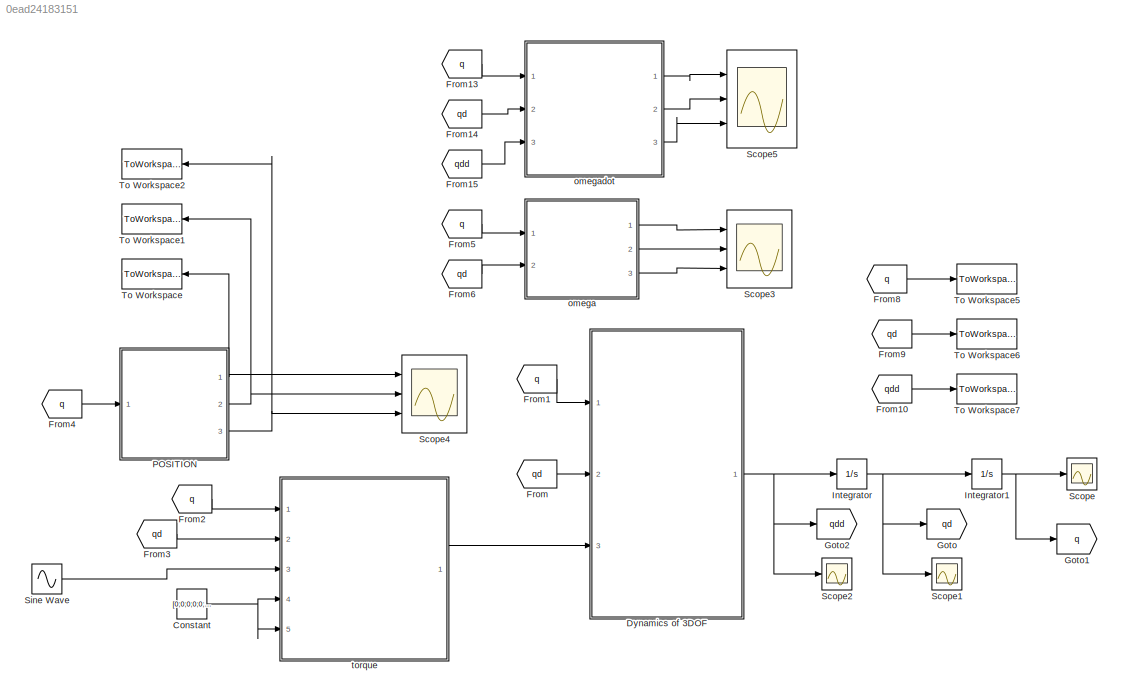
MODEL slx_0ead24183151
KIND model
CONFIG AbsTol = auto
CONFIG EnableMultiTasking = off
CONFIG FixedStep = auto
CONFIG MaxStep = auto
CONFIG MinStep = auto
CONFIG RelTol = 1e-3
CONFIG SampleTimeConstraint = Unconstrained
CONFIG Solver = VariableStepAuto
CONFIG SolverName = VariableStepAuto
CONFIG StartTime = 0.0
CONFIG StopTime = 100
BLOCK [Constant] Constant
  Value = [0;0;0;0;0;0]
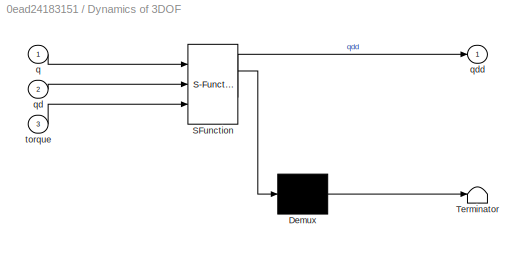
BLOCK [SubSystem] Dynamics of 3DOF
  ErrorFcn = Stateflow.Translate.translate
  PermitHierarchicalResolution = ExplicitOnly
  Ports = [3, 1]
  RequestExecContextInheritance = off
  SFBlockType = MATLAB Function
  TreatAsAtomicUnit = on
  Variant = off
BLOCK [Demux] Dynamics of 3DOF/ Demux 
  Outputs = 1
  Ports = [1, 1]
BLOCK [S-Function] Dynamics of 3DOF/ SFunction 
  EnableBusSupport = on
  FunctionName = sf_sfun
  PortCounts = [3 2]
  Ports = [3, 2]
  SFcnIsStateOwnerBlock = off
  SFunctionDeploymentMode = off
  Tag = Stateflow S-Function Dynamics 2
BLOCK [Terminator] Dynamics of 3DOF/ Terminator 
BLOCK [Inport] Dynamics of 3DOF/q
  IconDisplay = Port number
BLOCK [Inport] Dynamics of 3DOF/qd
  IconDisplay = Port number
  Port = 2
BLOCK [Outport] Dynamics of 3DOF/qdd
  IconDisplay = Port number
BLOCK [Inport] Dynamics of 3DOF/torque
  IconDisplay = Port number
  Port = 3
BLOCK [From] From
  GotoTag = qd
BLOCK [From] From1
  GotoTag = q
BLOCK [From] From10
  GotoTag = qdd
BLOCK [From] From13
  GotoTag = q
BLOCK [From] From14
  GotoTag = qd
BLOCK [From] From15
  GotoTag = qdd
BLOCK [From] From2
  GotoTag = q
BLOCK [From] From3
  GotoTag = qd
BLOCK [From] From4
  GotoTag = q
BLOCK [From] From5
  GotoTag = q
BLOCK [From] From6
  GotoTag = qd
BLOCK [From] From8
  GotoTag = q
BLOCK [From] From9
  GotoTag = qd
BLOCK [Goto] Goto
  GotoTag = qd
BLOCK [Goto] Goto1
  GotoTag = q
BLOCK [Goto] Goto2
  GotoTag = qdd
BLOCK [Integrator] Integrator
  InitialCondition = [0;0;0;0;0;0]
  Ports = [1, 1]
BLOCK [Integrator] Integrator1
  InitialCondition = [1;1;1;1;1;1]
  Ports = [1, 1]
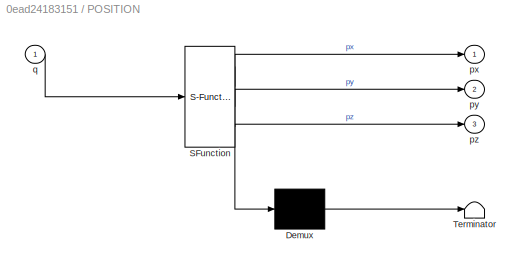
BLOCK [SubSystem] POSITION
  ErrorFcn = Stateflow.Translate.translate
  PermitHierarchicalResolution = ExplicitOnly
  Ports = [1, 3]
  RequestExecContextInheritance = off
  SFBlockType = MATLAB Function
  TreatAsAtomicUnit = on
  Variant = off
BLOCK [Demux] POSITION/ Demux 
  Outputs = 1
  Ports = [1, 1]
BLOCK [S-Function] POSITION/ SFunction 
  EnableBusSupport = on
  FunctionName = sf_sfun
  PortCounts = [1 4]
  Ports = [1, 4]
  SFcnIsStateOwnerBlock = off
  SFunctionDeploymentMode = off
  Tag = Stateflow S-Function Dynamics 4
BLOCK [Terminator] POSITION/ Terminator 
BLOCK [Outport] POSITION/px
  IconDisplay = Port number
BLOCK [Outport] POSITION/py
  IconDisplay = Port number
  Port = 2
BLOCK [Outport] POSITION/pz
  IconDisplay = Port number
  Port = 3
BLOCK [Inport] POSITION/q
  IconDisplay = Port number
BLOCK [Scope] Scope
  NumInputPorts = 1
  Ports = [1]
  ScopeSpecificationString = Simulink.scopes.TimeScopeBlockCfg('CurrentConfiguration', extmgr.ConfigurationSet(extmgr.Configuration('Core','General UI',true,'FigureColor',[0.862745098039216 0.862745098039216 0.862745098039216]),extmgr.Configuration('Core','Source UI',true),extmgr.Configuration('Sources','WiredSimulink',true,'DataLoggingSaveFormat','Array','DataLoggingDecimation','1','DataLoggingDecimateData',true,'DataLogging...<+2134ch>
BLOCK [Scope] Scope1
  NumInputPorts = 1
  Ports = [1]
  ScopeSpecificationString = Simulink.scopes.TimeScopeBlockCfg('CurrentConfiguration', extmgr.ConfigurationSet(extmgr.Configuration('Core','General UI',true,'FigureColor',[0.862745098039216 0.862745098039216 0.862745098039216]),extmgr.Configuration('Core','Source UI',true),extmgr.Configuration('Sources','WiredSimulink',true,'DataLoggingVariableName','ScopeData2','DataLoggingSaveFormat','Array','DataLoggingDecimation','1','Dat...<+2142ch>
BLOCK [Scope] Scope2
  NumInputPorts = 1
  Ports = [1]
  ScopeSpecificationString = Simulink.scopes.TimeScopeBlockCfg('CurrentConfiguration', extmgr.ConfigurationSet(extmgr.Configuration('Core','General UI',true,'FigureColor',[0.862745098039216 0.862745098039216 0.862745098039216]),extmgr.Configuration('Core','Source UI',true),extmgr.Configuration('Sources','WiredSimulink',true,'DataLoggingSaveFormat','Array','DataLoggingDecimation','1','DataLoggingDecimateData',true,'DataLogging...<+2148ch>
BLOCK [Scope] Scope3
  NumInputPorts = 3
  Ports = [3]
  ScopeSpecificationString = Simulink.scopes.TimeScopeBlockCfg('CurrentConfiguration', extmgr.ConfigurationSet(extmgr.Configuration('Core','General UI',true,'FigureColor',[0.862745098039216 0.862745098039216 0.862745098039216]),extmgr.Configuration('Core','Source UI',true),extmgr.Configuration('Sources','WiredSimulink',true,'DataLoggingVariableName','ScopeData4'),extmgr.Configuration('Visuals','Time Domain',true,'SerializedDi...<+1907ch>
BLOCK [Scope] Scope4
  NumInputPorts = 3
  Ports = [3]
  ScopeSpecificationString = Simulink.scopes.TimeScopeBlockCfg('CurrentConfiguration', extmgr.ConfigurationSet(extmgr.Configuration('Core','General UI',true,'FigureColor',[0.862745098039216 0.862745098039216 0.862745098039216]),extmgr.Configuration('Core','Source UI',true),extmgr.Configuration('Sources','WiredSimulink',true,'DataLoggingVariableName','ScopeData5'),extmgr.Configuration('Visuals','Time Domain',true,'SerializedDi...<+1952ch>
BLOCK [Scope] Scope5
  NumInputPorts = 3
  Ports = [3]
  ScopeSpecificationString = Simulink.scopes.TimeScopeBlockCfg('CurrentConfiguration', extmgr.ConfigurationSet(extmgr.Configuration('Core','General UI',true,'FigureColor',[0.862745098039216 0.862745098039216 0.862745098039216]),extmgr.Configuration('Core','Source UI',true),extmgr.Configuration('Sources','WiredSimulink',true),extmgr.Configuration('Visuals','Time Domain',true,'SerializedDisplays',{struct('MinYLimReal','-48.9421...<+1892ch>
BLOCK [Sin] Sine Wave
  Ports = [0, 1]
  SampleTime = 0
BLOCK [ToWorkspace] To Workspace
  FixptAsFi = on
  MaxDataPoints = inf
  Ports = [1]
  SampleTime = -1
  Save2DSignal = 3-D array (concatenate along third dimension)
  VariableName = px
BLOCK [ToWorkspace] To Workspace1
  FixptAsFi = on
  MaxDataPoints = inf
  Ports = [1]
  SampleTime = -1
  Save2DSignal = 3-D array (concatenate along third dimension)
  VariableName = py
BLOCK [ToWorkspace] To Workspace2
  FixptAsFi = on
  MaxDataPoints = inf
  Ports = [1]
  SampleTime = -1
  Save2DSignal = 3-D array (concatenate along third dimension)
  VariableName = pz
BLOCK [ToWorkspace] To Workspace5
  FixptAsFi = on
  MaxDataPoints = inf
  Ports = [1]
  SampleTime = -1
  VariableName = q
BLOCK [ToWorkspace] To Workspace6
  FixptAsFi = on
  MaxDataPoints = inf
  Ports = [1]
  SampleTime = -1
  VariableName = qd
BLOCK [ToWorkspace] To Workspace7
  FixptAsFi = on
  MaxDataPoints = inf
  Ports = [1]
  SampleTime = -1
  VariableName = qdd
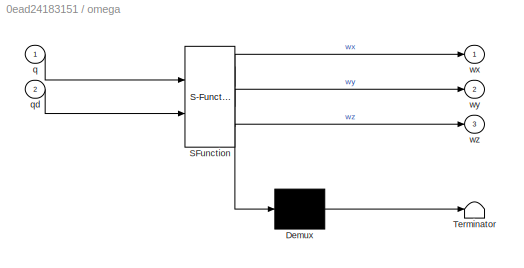
BLOCK [SubSystem] omega
  ErrorFcn = Stateflow.Translate.translate
  PermitHierarchicalResolution = ExplicitOnly
  Ports = [2, 3]
  RequestExecContextInheritance = off
  SFBlockType = MATLAB Function
  TreatAsAtomicUnit = on
  Variant = off
BLOCK [Demux] omega/ Demux 
  Outputs = 1
  Ports = [1, 1]
BLOCK [S-Function] omega/ SFunction 
  EnableBusSupport = on
  FunctionName = sf_sfun
  PortCounts = [2 4]
  Ports = [2, 4]
  SFcnIsStateOwnerBlock = off
  SFunctionDeploymentMode = off
  Tag = Stateflow S-Function Dynamics 3
BLOCK [Terminator] omega/ Terminator 
BLOCK [Inport] omega/q
  IconDisplay = Port number
BLOCK [Inport] omega/qd
  IconDisplay = Port number
  Port = 2
BLOCK [Outport] omega/wx
  IconDisplay = Port number
BLOCK [Outport] omega/wy
  IconDisplay = Port number
  Port = 2
BLOCK [Outport] omega/wz
  IconDisplay = Port number
  Port = 3
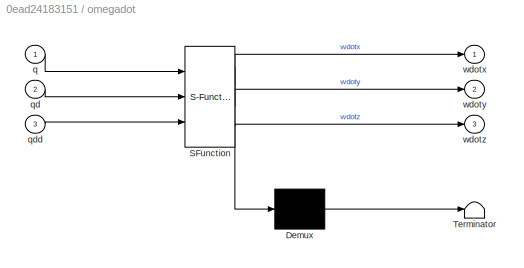
BLOCK [SubSystem] omegadot
  ErrorFcn = Stateflow.Translate.translate
  PermitHierarchicalResolution = ExplicitOnly
  Ports = [3, 3]
  RequestExecContextInheritance = off
  SFBlockType = MATLAB Function
  TreatAsAtomicUnit = on
  Variant = off
BLOCK [Demux] omegadot/ Demux 
  Outputs = 1
  Ports = [1, 1]
BLOCK [S-Function] omegadot/ SFunction 
  EnableBusSupport = on
  FunctionName = sf_sfun
  PortCounts = [3 4]
  Ports = [3, 4]
  SFcnIsStateOwnerBlock = off
  SFunctionDeploymentMode = off
  Tag = Stateflow S-Function Dynamics 7
BLOCK [Terminator] omegadot/ Terminator 
BLOCK [Inport] omegadot/q
  IconDisplay = Port number
BLOCK [Inport] omegadot/qd
  IconDisplay = Port number
  Port = 2
BLOCK [Inport] omegadot/qdd
  IconDisplay = Port number
  Port = 3
BLOCK [Outport] omegadot/wdotx
  IconDisplay = Port number
BLOCK [Outport] omegadot/wdoty
  IconDisplay = Port number
  Port = 2
BLOCK [Outport] omegadot/wdotz
  IconDisplay = Port number
  Port = 3
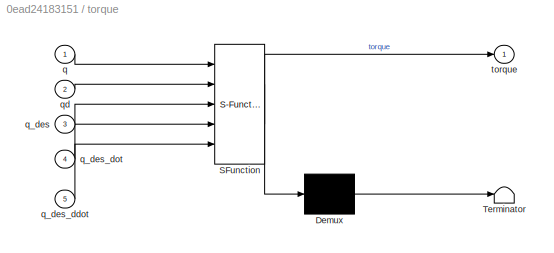
BLOCK [SubSystem] torque
  ErrorFcn = Stateflow.Translate.translate
  PermitHierarchicalResolution = ExplicitOnly
  Ports = [5, 1]
  RequestExecContextInheritance = off
  SFBlockType = MATLAB Function
  TreatAsAtomicUnit = on
  Variant = off
BLOCK [Demux] torque/ Demux 
  Outputs = 1
  Ports = [1, 1]
BLOCK [S-Function] torque/ SFunction 
  EnableBusSupport = on
  FunctionName = sf_sfun
  PortCounts = [5 2]
  Ports = [5, 2]
  SFcnIsStateOwnerBlock = off
  SFunctionDeploymentMode = off
  Tag = Stateflow S-Function Dynamics 1
BLOCK [Terminator] torque/ Terminator 
BLOCK [Inport] torque/q
  IconDisplay = Port number
BLOCK [Inport] torque/q_des
  IconDisplay = Port number
  Port = 3
BLOCK [Inport] torque/q_des_ddot
  IconDisplay = Port number
  Port = 5
BLOCK [Inport] torque/q_des_dot
  IconDisplay = Port number
  Port = 4
BLOCK [Inport] torque/qd
  IconDisplay = Port number
  Port = 2
BLOCK [Outport] torque/torque
  IconDisplay = Port number
NET Constant:1 -> torque:4, torque:5
NET Dynamics of 3DOF:1 -> Goto2:1, Integrator:1, Scope2:1
LINE From10:1 -> To Workspace7:1
LINE From13:1 -> omegadot:1
LINE From14:1 -> omegadot:2
LINE From15:1 -> omegadot:3
LINE From1:1 -> Dynamics of 3DOF:1
LINE From2:1 -> torque:1
LINE From3:1 -> torque:2
LINE From4:1 -> POSITION:1
LINE From5:1 -> omega:1
LINE From6:1 -> omega:2
LINE From8:1 -> To Workspace5:1
LINE From9:1 -> To Workspace6:1
LINE From:1 -> Dynamics of 3DOF:2
NET Integrator1:1 -> Goto1:1, Scope:1
NET Integrator:1 -> Goto:1, Integrator1:1, Scope1:1
NET POSITION:1 -> Scope4:1, To Workspace:1
NET POSITION:2 -> Scope4:2, To Workspace1:1
NET POSITION:3 -> Scope4:3, To Workspace2:1
LINE Sine Wave:1 -> torque:3
LINE omega:1 -> Scope3:1
LINE omega:2 -> Scope3:2
LINE omega:3 -> Scope3:3
LINE omegadot:1 -> Scope5:1
LINE omegadot:2 -> Scope5:2
LINE omegadot:3 -> Scope5:3
LINE torque:1 -> Dynamics of 3DOF:3
note: NET lines group one-source signal fan-out (src -> all destinations, sorted); 1:1 wires keep LINE
CHART torque states=1 transitions=1
  STATE_LABEL 'eML_blk_kernel()'
  STATE_LABEL 'SCRIPT:\nfunction torque = fcn(q,qd,q_des,q_des_dot,q_des_ddot)\n%#codegen\n\n%% Constant\n% syms qd(1) qd(2) qd(3) qd(4) qd(5) qd(6)\n% syms qdd(1) qdd(2) qdd(3) qdd(4) qdd(5) qdd(6)\n\ng = 9.8;\n\n\nm2=26.9797\nm3=15.9204\nm4=25.8524\nm5=4.08846\nm6=1.61544\nm7=0.0160103\n\nKp = 20;\nKd = 10;\n%% Triangle relative\n\nc1 = cos(q(1));\nc2 = cos(q(2));\nc3 = cos(q(3));\nc4 = cos(q(4));\nc5 = cos(q(5));\nc6 = cos(q(6));\ns1 = ...<+3608ch>'
CHART Dynamics of 3DOF states=1 transitions=1
  STATE_LABEL 'eML_blk_kernel()'
  STATE_LABEL 'SCRIPT:\nfunction qdd = fcn(q,qd,torque)\n%#codegen\n%% Constant\n\n% syms qd(1) qd(2) qd(3) qd(4) qd(5) qd(6)\n% syms qdd(1) qdd(2) qdd(3) qdd(4) qdd(5) qdd(6)\n\nm2=26.9797\nm3=15.9204\nm4=25.8524\nm5=4.08846\nm6=1.61544\nm7=0.0160103\n\ng = 9.8;\n\n%% Triangle relative\n\nc1 = cos(q(1));\nc2 = cos(q(2));\nc3 = cos(q(3));\nc4 = cos(q(4));\nc5 = cos(q(5));\nc6 = cos(q(6));\ns1 = sin(q(1));\ns2 = sin(q(2));\ns3 = sin(q(3));...<+3608ch>'
CHART omega states=1 transitions=1
  STATE_LABEL 'eML_blk_kernel()'
  STATE_LABEL 'SCRIPT:\nfunction [wx ,wy, wz] = fcn(q , qd)\n\nq1 = q(1);\nq2 = q(2);\nq3 = q(3);\nq4 = q(4);\nq5 = q(5);\nq6 = q(6);\n\nc1 = cos(q(1));\nc2 = cos(q(2));\nc3 = cos(q(3));\nc4 = cos(q(4));\nc5 = cos(q(5));\nc6 = cos(q(6));\ns1 = sin(q(1));\ns2 = sin(q(2));\ns3 = sin(q(3));\ns4 = sin(q(4));\ns5 = sin(q(5));\ns6 = sin(q(6));\n\nwx = c6*(c5*(-c3*s4*(q(1) + q(2)) + c4*s3*(q(1) + q(2))) - s5*(-q(3) + q(4))) - s6*(-c5*(-q(3) ...<+284ch>'
CHART POSITION states=1 transitions=1
  STATE_LABEL 'eML_blk_kernel()'
  STATE_LABEL 'SCRIPT:\nfunction [px,py,pz] = fcn(q)\n%#codegen\n\nq1 = q(1);\nq2 = q(2);\nq3 = q(3);\nq4 = q(4);\nq5 = q(5);\nq6 = q(6);\n\n\npx = 270*cos(q(1)) + 90*cos(q(1))*cos(q(2)) - 295*cos(q(1))*sin(q(2)) - 295*cos(q(2))*sin(q(1)) - 90*sin(q(1))*sin(q(2)) + 80*cos(q(3))*sin(q(4))*(cos(q(1))*cos(q(2)) - sin(q(1))*sin(q(2))) - 80*cos(q(4))*sin(q(3))*(cos(q(1))*cos(q(2)) - sin(q(1))*sin(q(2))) + 75;\npy = 80*cos(q(3))*c...<+317ch>'
CHART omegadot states=1 transitions=1
  STATE_LABEL 'eML_blk_kernel()'
  STATE_LABEL 'SCRIPT:\nfunction [wdotx ,wdoty, wdotz] = fcn(q , qd, qdd)\n\nq1 = q(1);\nq2 = q(2);\nq3 = q(3);\nq4 = q(4);\nq5 = q(5);\nq6 = q(6);\n\nc1 = cos(q(1));\nc2 = cos(q(2));\nc3 = cos(q(3));\nc4 = cos(q(4));\nc5 = cos(q(5));\nc6 = cos(q(6));\ns1 = sin(q(1));\ns2 = sin(q(2));\ns3 = sin(q(3));\ns4 = sin(q(4));\ns5 = sin(q(5));\ns6 = sin(q(6));\n\nwdotx = c6*(c5*(c4*(c3*qd(3)*(qd(1) + qd(2)) + s3*(qdd(1) + qdd(2))) + qd(4)*(-c3...<+1616ch>'
